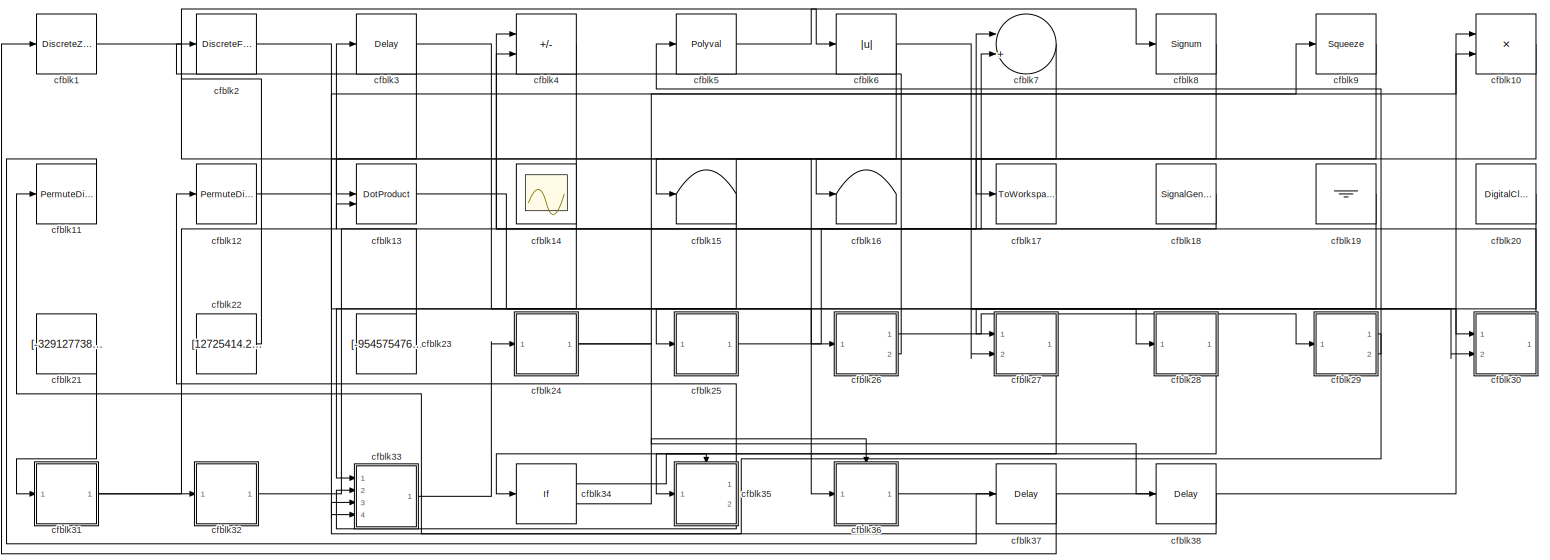
[diagram: root canvas - part 1/1, most of the canvas]
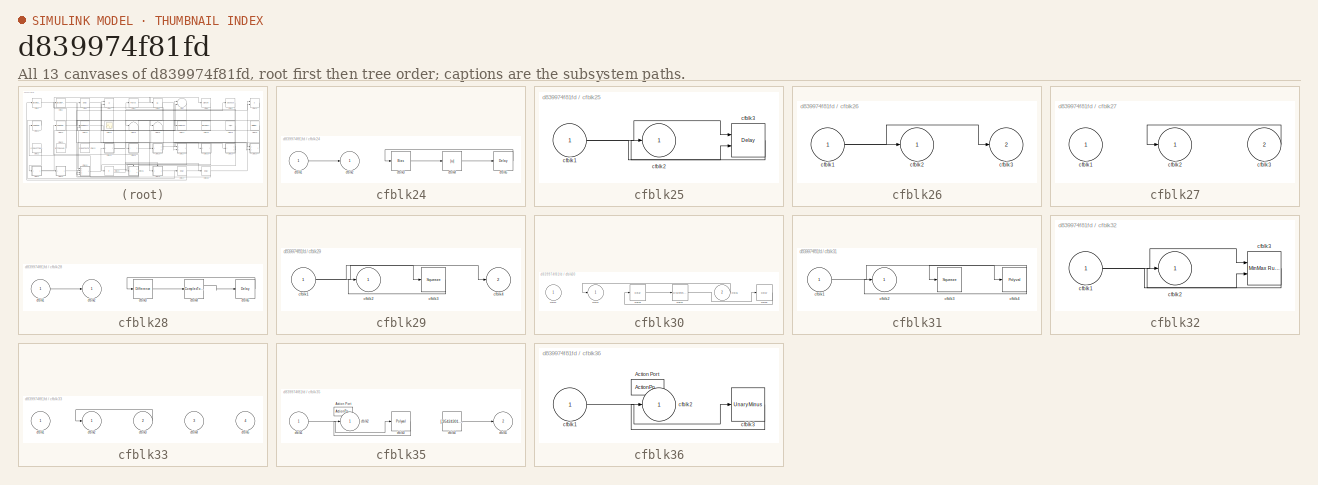
[diagram: thumbnail index - all 13 canvases of the model, root first then tree order]
MODEL slx_d839974f81fd
KIND model
CONFIG AbsTol = auto
CONFIG EnableMultiTasking = off
CONFIG FixedStep = auto
CONFIG MaxStep = auto
CONFIG MinStep = auto
CONFIG RelTol = 1e-3
CONFIG SampleTimeConstraint = Unconstrained
CONFIG SolverName = VariableStepAuto
CONFIG StartTime = 0.0
CONFIG StopTime = 10.0
BLOCK [DiscreteZeroPole] cfblk1
  Gain = 1
  Poles = [0 0.5]
BLOCK [Product] cfblk10
  Inputs = **
  Ports = [2, 1]
BLOCK [PermuteDimensions] cfblk11
BLOCK [PermuteDimensions] cfblk12
BLOCK [DotProduct] cfblk13
  OutDataTypeStr = Inherit: Inherit via internal rule
BLOCK [Scope] cfblk14
  Floating = on
  NumInputPorts = 1
  Ports = []
BLOCK [Terminator] cfblk15
BLOCK [Terminator] cfblk16
BLOCK [ToWorkspace] cfblk17
  FixptAsFi = on
  MaxDataPoints = inf
  Ports = [1]
  SampleTime = -1
  SaveFormat = Timeseries
  VariableName = sxpinwa
BLOCK [SignalGenerator] cfblk18
  Amplitude = [174804602.650476]
  Ports = [0, 1]
  Units = rad/sec
  WaveForm = sawtooth
BLOCK [Ground] cfblk19
BLOCK [DiscreteFilter] cfblk2
  InputPortMap = u0
  Ports = [1, 1]
  SampleTime = 1
BLOCK [DigitalClock] cfblk20
BLOCK [Constant] cfblk21
  SampleTime = 1
  Value = [-329127738.072264]
BLOCK [Constant] cfblk22
  SampleTime = 1
  Value = [12725414.298514]
BLOCK [Constant] cfblk23
  SampleTime = 1
  Value = [-954575476.254007]
BLOCK [SubSystem] cfblk24
  Ports = [1, 1]
  RequestExecContextInheritance = off
BLOCK [Inport] cfblk24/cfblk1
BLOCK [Outport] cfblk24/cfblk2
BLOCK [Bias] cfblk24/cfblk3
  Bias = [-636683175.253084]
  SaturateOnIntegerOverflow = off
BLOCK [Abs] cfblk24/cfblk4
  SaturateOnIntegerOverflow = off
BLOCK [Delay] cfblk24/cfblk5
  InputPortMap = u0
  Ports = [1, 1]
  SampleTime = 1
BLOCK [SubSystem] cfblk25
  Ports = [1, 1]
  RequestExecContextInheritance = off
BLOCK [Inport] cfblk25/cfblk1
BLOCK [Outport] cfblk25/cfblk2
BLOCK [Delay] cfblk25/cfblk3
  InputPortMap = u0,e6
  Ports = [2, 1]
  SampleTime = 1
  ShowEnablePort = on
BLOCK [SubSystem] cfblk26
  Ports = [1, 2]
  RequestExecContextInheritance = off
BLOCK [Inport] cfblk26/cfblk1
BLOCK [Outport] cfblk26/cfblk2
BLOCK [Outport] cfblk26/cfblk3
  Port = 2
BLOCK [SubSystem] cfblk27
  Ports = [2, 1]
  RequestExecContextInheritance = off
BLOCK [Inport] cfblk27/cfblk1
BLOCK [Outport] cfblk27/cfblk2
BLOCK [Inport] cfblk27/cfblk3
  Port = 2
BLOCK [SubSystem] cfblk28
  Ports = [1, 1]
  RequestExecContextInheritance = off
BLOCK [Inport] cfblk28/cfblk1
BLOCK [Outport] cfblk28/cfblk2
BLOCK [Reference] cfblk28/cfblk3  REF=simulink/Discrete/Difference
  Ports = [1, 1]
  SourceBlock = simulink/Discrete/Difference
  SourceProductBaseCode = SL
  SourceType = Difference
BLOCK [ComplexToMagnitudeAngle] cfblk28/cfblk4
  Ports = [1, 2]
BLOCK [Delay] cfblk28/cfblk5
  InputPortMap = u0
  Ports = [1, 1]
  SampleTime = 1
BLOCK [SubSystem] cfblk29
  Ports = [1, 2]
  RequestExecContextInheritance = off
BLOCK [Inport] cfblk29/cfblk1
BLOCK [Outport] cfblk29/cfblk2
BLOCK [Squeeze] cfblk29/cfblk3
BLOCK [Outport] cfblk29/cfblk4
  Port = 2
BLOCK [Delay] cfblk3
  InputPortMap = u0
  Ports = [1, 1]
  SampleTime = 1
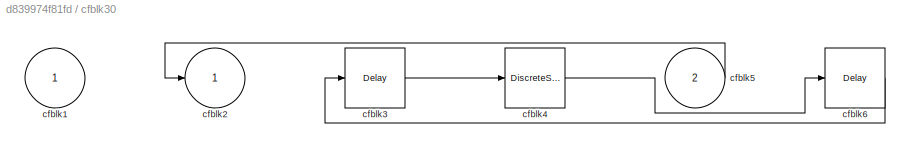
BLOCK [SubSystem] cfblk30
  Ports = [2, 1]
  RequestExecContextInheritance = off
BLOCK [Inport] cfblk30/cfblk1
BLOCK [Outport] cfblk30/cfblk2
BLOCK [Delay] cfblk30/cfblk3
  InputPortMap = u0
  Ports = [1, 1]
  SampleTime = 1
BLOCK [DiscreteStateSpace] cfblk30/cfblk4
BLOCK [Inport] cfblk30/cfblk5
  Port = 2
BLOCK [Delay] cfblk30/cfblk6
  InputPortMap = u0
  Ports = [1, 1]
  SampleTime = 1
BLOCK [SubSystem] cfblk31
  Ports = [1, 1]
  RequestExecContextInheritance = off
BLOCK [Inport] cfblk31/cfblk1
BLOCK [Outport] cfblk31/cfblk2
BLOCK [Squeeze] cfblk31/cfblk3
BLOCK [Polyval] cfblk31/cfblk4
  Coefs = [ +2.081618890e-019, -1.441693666e-014, +4.719686976e-010, -8.536869453e-006, +1.621573104e-001, -8.087801117e+001 ]
BLOCK [SubSystem] cfblk32
  Ports = [1, 1]
  RequestExecContextInheritance = off
BLOCK [Inport] cfblk32/cfblk1
BLOCK [Outport] cfblk32/cfblk2
BLOCK [Reference] cfblk32/cfblk3  REF=simulink/Math
Operations/MinMax
Running
Resettable
  Ports = [2, 1]
  SourceBlock = simulink/Math\nOperations/MinMax\nRunning\nResettable
  SourceProductBaseCode = SL
  SourceType = MinMax Running Resettable
BLOCK [SubSystem] cfblk33
  Ports = [4, 1]
  RequestExecContextInheritance = off
BLOCK [Inport] cfblk33/cfblk1
BLOCK [Outport] cfblk33/cfblk2
BLOCK [Inport] cfblk33/cfblk3
  Port = 2
BLOCK [Inport] cfblk33/cfblk4
  Port = 3
BLOCK [Inport] cfblk33/cfblk5
  Port = 4
BLOCK [If] cfblk34
  IfExpression = u1 >= 0
  Ports = [1, 2]
  SampleTime = 1
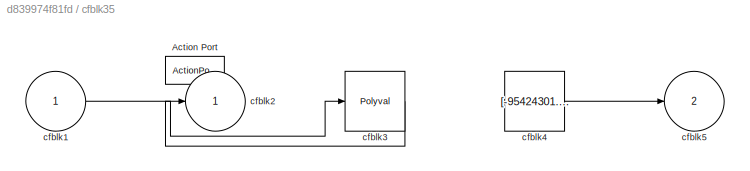
BLOCK [SubSystem] cfblk35
  Ports = [1, 2, 0, 0, 0, 0, 0, 1]
  RequestExecContextInheritance = off
  TreatAsAtomicUnit = on
BLOCK [ActionPort] cfblk35/Action Port
  ActionPortLabel = if(u1 >= 0)
BLOCK [Inport] cfblk35/cfblk1
BLOCK [Outport] cfblk35/cfblk2
BLOCK [Polyval] cfblk35/cfblk3
  Coefs = [ +2.081618890e-019, -1.441693666e-014, +4.719686976e-010, -8.536869453e-006, +1.621573104e-001, -8.087801117e+001 ]
BLOCK [Constant] cfblk35/cfblk4
  SampleTime = 1
  Value = [-95424301.813355]
BLOCK [Outport] cfblk35/cfblk5
  Port = 2
BLOCK [SubSystem] cfblk36
  Ports = [1, 1, 0, 0, 0, 0, 0, 1]
  RequestExecContextInheritance = off
  TreatAsAtomicUnit = on
BLOCK [ActionPort] cfblk36/Action Port
  ActionPortLabel = else
BLOCK [Inport] cfblk36/cfblk1
BLOCK [Outport] cfblk36/cfblk2
BLOCK [UnaryMinus] cfblk36/cfblk3
BLOCK [Delay] cfblk37
  InputPortMap = u0
  Ports = [1, 1]
  SampleTime = 1
BLOCK [Delay] cfblk38
  InputPortMap = u0
  Ports = [1, 1]
  SampleTime = 1
BLOCK [Sum] cfblk4
  IconShape = rectangular
  Inputs = --
  Ports = [2, 1]
BLOCK [Polyval] cfblk5
  Coefs = [ +2.081618890e-019, -1.441693666e-014, +4.719686976e-010, -8.536869453e-006, +1.621573104e-001, -8.087801117e+001 ]
BLOCK [Abs] cfblk6
  SaturateOnIntegerOverflow = off
BLOCK [Sum] cfblk7
  Inputs = |++
  Ports = [2, 1]
BLOCK [Signum] cfblk8
BLOCK [Squeeze] cfblk9
LINE cfblk10:1 -> cfblk25:1
LINE cfblk11:1 -> cfblk37:1
LINE cfblk12:1 -> cfblk10:2
LINE cfblk13:1 -> cfblk36:1
LINE cfblk18:1 -> cfblk4:1
LINE cfblk19:1 -> cfblk27:2
LINE cfblk1:1 -> cfblk26:1
LINE cfblk20:1 -> cfblk27:1
LINE cfblk21:1 -> cfblk31:1
LINE cfblk22:1 -> cfblk6:1
LINE cfblk23:1 -> cfblk3:1
LINE cfblk24/cfblk1:1 -> cfblk24/cfblk2:1
LINE cfblk24/cfblk3:1 -> cfblk24/cfblk4:1
LINE cfblk24/cfblk4:1 -> cfblk24/cfblk5:1
LINE cfblk24/cfblk5:1 -> cfblk24/cfblk3:1
NET cfblk24:1 -> cfblk38:1, cfblk9:1
NET cfblk25/cfblk1:1 -> cfblk25/cfblk3:1, cfblk25/cfblk3:2
LINE cfblk25/cfblk3:1 -> cfblk25/cfblk2:1
LINE cfblk25:1 -> cfblk7:1
NET cfblk26/cfblk1:1 -> cfblk26/cfblk2:1, cfblk26/cfblk3:1
LINE cfblk26:1 -> cfblk29:1
LINE cfblk26:2 -> cfblk2:1
LINE cfblk27/cfblk3:1 -> cfblk27/cfblk2:1
LINE cfblk27:1 -> cfblk35:1
LINE cfblk28/cfblk1:1 -> cfblk28/cfblk2:1
LINE cfblk28/cfblk3:1 -> cfblk28/cfblk4:1
LINE cfblk28/cfblk4:1 -> cfblk28/cfblk5:1
LINE cfblk28/cfblk5:1 -> cfblk28/cfblk3:1
LINE cfblk28:1 -> cfblk34:1
NET cfblk29/cfblk1:1 -> cfblk29/cfblk3:1, cfblk29/cfblk4:1
LINE cfblk29/cfblk3:1 -> cfblk29/cfblk2:1
LINE cfblk29:1 -> cfblk11:1
LINE cfblk29:2 -> cfblk5:1
LINE cfblk2:1 -> cfblk30:1
LINE cfblk30/cfblk3:1 -> cfblk30/cfblk4:1
LINE cfblk30/cfblk4:1 -> cfblk30/cfblk6:1
LINE cfblk30/cfblk5:1 -> cfblk30/cfblk2:1
LINE cfblk30/cfblk6:1 -> cfblk30/cfblk3:1
LINE cfblk30:1 -> cfblk4:2
LINE cfblk31/cfblk1:1 -> cfblk31/cfblk4:1
NET cfblk31/cfblk4:1 -> cfblk31/cfblk2:1, cfblk31/cfblk3:1
NET cfblk31:1 -> cfblk13:2, cfblk32:1
NET cfblk32/cfblk1:1 -> cfblk32/cfblk3:1, cfblk32/cfblk3:2
LINE cfblk32/cfblk3:1 -> cfblk32/cfblk2:1
LINE cfblk32:1 -> cfblk7:2
LINE cfblk33/cfblk3:1 -> cfblk33/cfblk2:1
LINE cfblk33:1 -> cfblk24:1
LINE cfblk34:1 -> cfblk35:ifaction
LINE cfblk34:2 -> cfblk36:ifaction
LINE cfblk35/cfblk1:1 -> cfblk35/cfblk3:1
LINE cfblk35/cfblk3:1 -> cfblk35/cfblk2:1
LINE cfblk35/cfblk4:1 -> cfblk35/cfblk5:1
LINE cfblk35:1 -> cfblk12:1
LINE cfblk35:2 -> cfblk33:2
LINE cfblk36/cfblk1:1 -> cfblk36/cfblk3:1
LINE cfblk36/cfblk3:1 -> cfblk36/cfblk2:1
LINE cfblk36:1 -> cfblk10:1
LINE cfblk37:1 -> cfblk1:1
LINE cfblk38:1 -> cfblk33:3
NET cfblk3:1 -> cfblk28:1, cfblk33:4
LINE cfblk4:1 -> cfblk33:1
LINE cfblk5:1 -> cfblk8:1
NET cfblk6:1 -> cfblk13:1, cfblk30:2
LINE cfblk7:1 -> cfblk16:1
LINE cfblk8:1 -> cfblk17:1
LINE cfblk9:1 -> cfblk15:1
note: NET lines group one-source signal fan-out (src -> all destinations, sorted); 1:1 wires keep LINE
